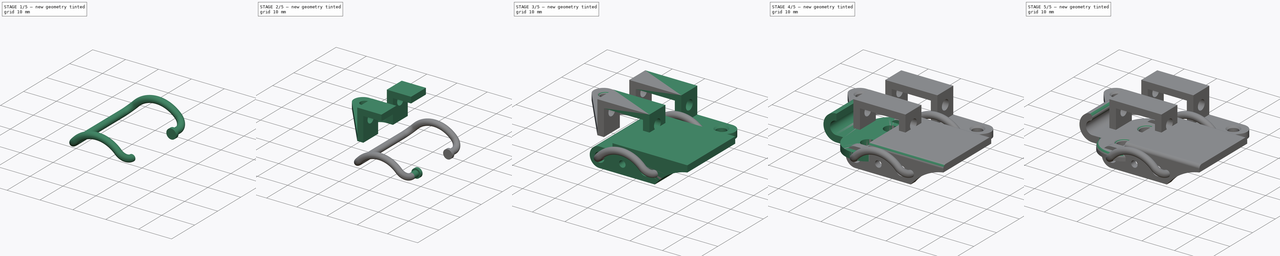
[diagram: build sequence overview — one tinted view per stage of 5, left to right]
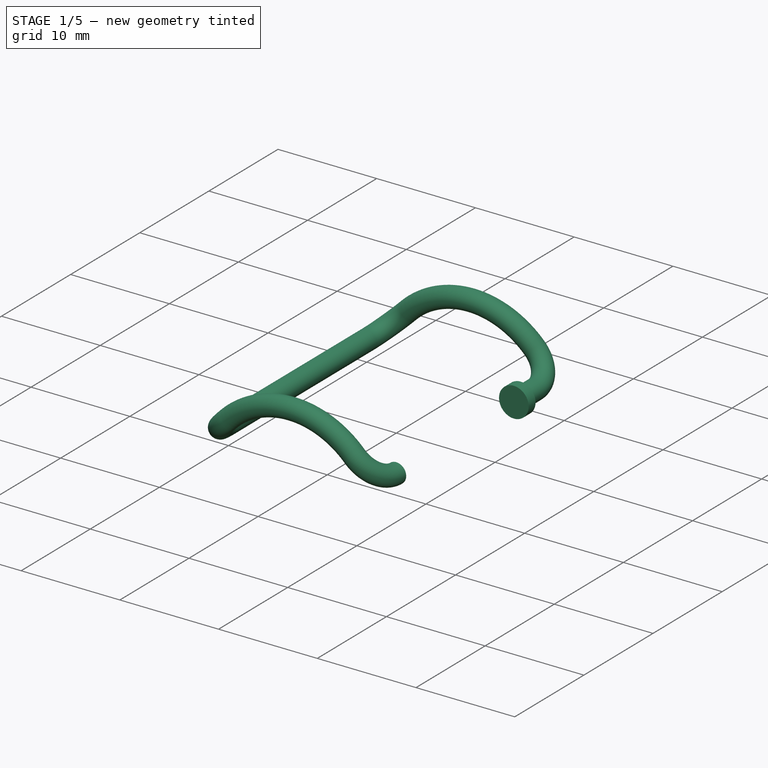
[diagram: stage 1 of 5 — iso view after this stage's code; geometry added in this stage tinted green]
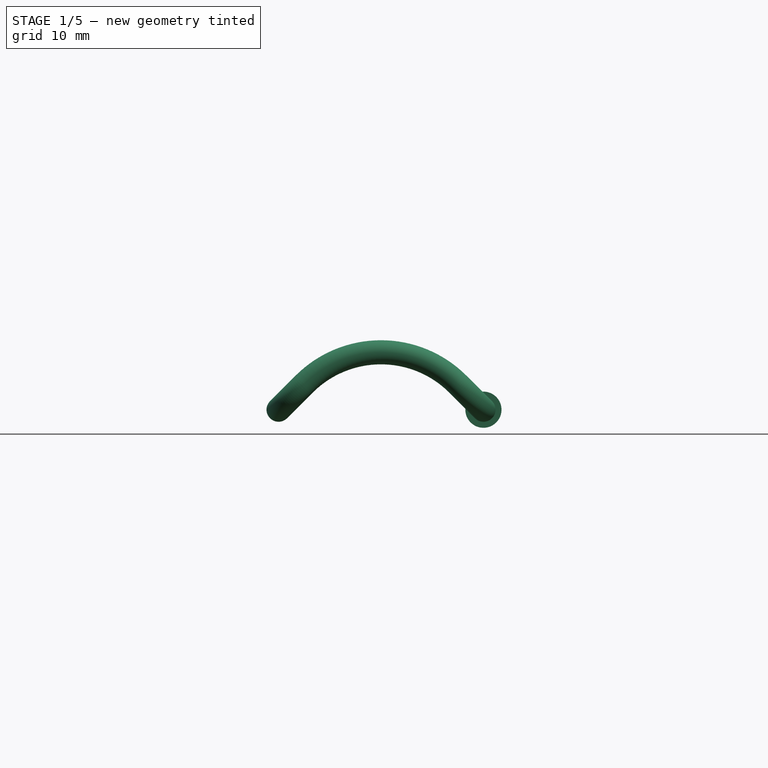
[diagram: stage 1 of 5 — front view after this stage's code; geometry added in this stage tinted green]
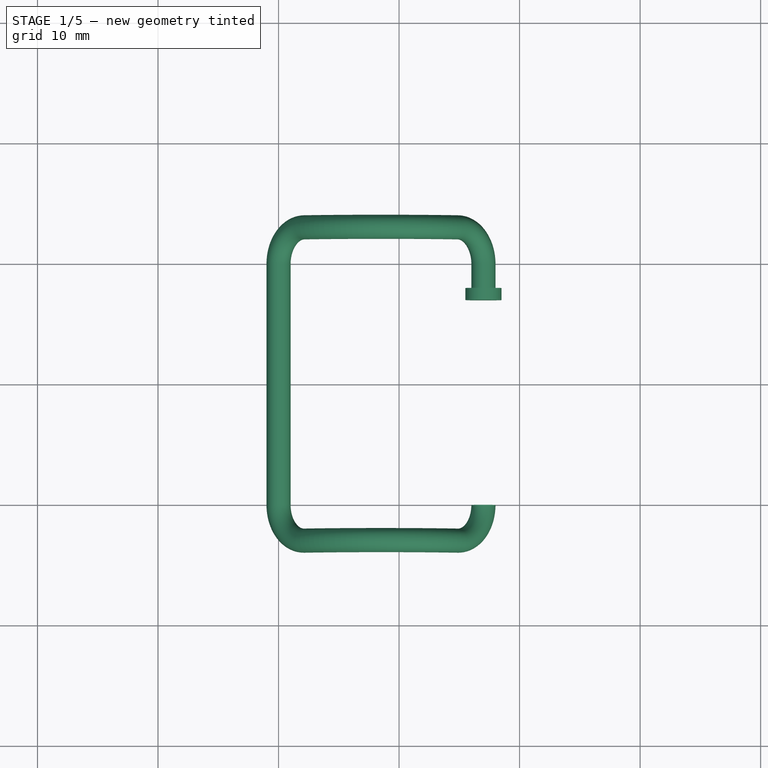
[diagram: stage 1 of 5 — top view after this stage's code; geometry added in this stage tinted green]
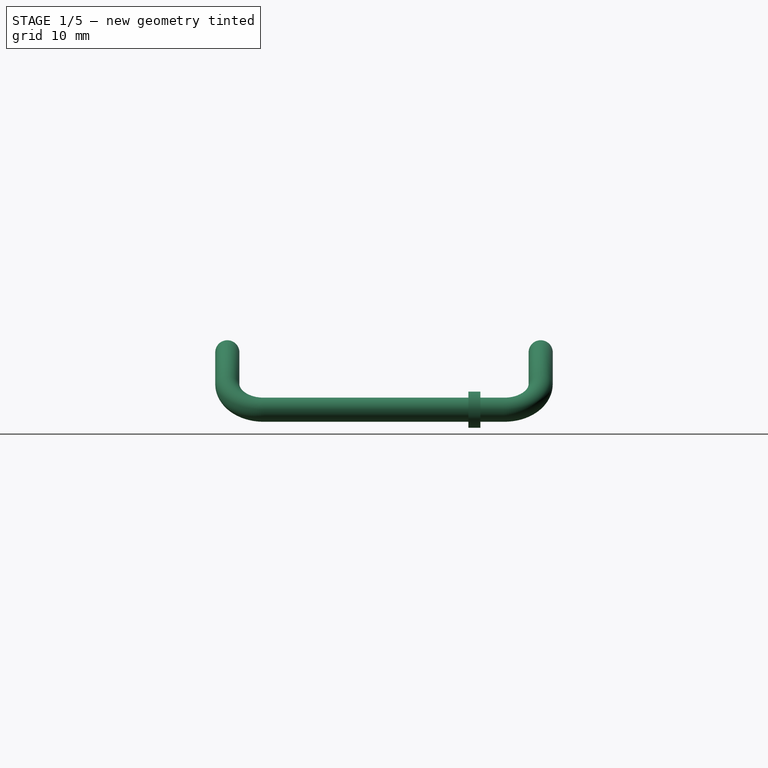
[diagram: stage 1 of 5 — right view after this stage's code; geometry added in this stage tinted green]
FCSTD DOCUMENT  (FreeCAD 0.21RUnknown)
Label: part35
License: All rights reserved
LicenseURL: http://en.wikipedia.org/wiki/All_rights_reserved
objects: Sketcher::SketchObject×13, PartDesign::Pad×6, PartDesign::Body×4, PartDesign::Fillet×3, PartDesign::Pocket×3, PartDesign::Chamfer×2, PartDesign::Mirrored×2, PartDesign::SubShapeBinder×1, PartDesign::AdditivePipe×1
note: 50 computed .brp shape members not serialized (recipe doc carries the construction recipe); baked Part::Feature solids carry a one-line shape summary decoded from their .brp

FEATURE [PartDesign::Body] Body002  label="Body Mount"
  Group = -> [Sketch004,Pad003,Sketch005,Pocket001,Sketch006,Pocket002,Chamfer001,Mirrored]
  Origin = -> Origin002
  Placement = pos=(83,-54,0) rot=(0,0,1;0rad)
  Tip = -> Mirrored
FEATURE [Sketcher::SketchObject] Sketch007  label="Path1"
  AttachmentOffset = pos=(0,0,0) rot=(0,1,0;-0.785398rad)
  FullyConstrained = true
  MapMode = 5
  Placement = pos=(0,0,0) rot=(0,1,0;5.49779rad)
  Support = -> [XY_Plane003]
  sketch-geometry (3):
    g0: ArcOfCircle CenterX=3 CenterY=10 CenterZ=0 NormalX=0 NormalY=0 NormalZ=1 AngleXU=0 Radius=3 StartAngle=1.5708 EndAngle=3.14159
    g1: LineSegment StartX=-4e-16 StartY=-10 StartZ=0 EndX=-4e-16 EndY=10 EndZ=0
    g2: ArcOfCircle CenterX=3 CenterY=-10 CenterZ=0 NormalX=0 NormalY=0 NormalZ=1 AngleXU=0 Radius=3 StartAngle=3.14159 EndAngle=4.71239
  constraints (9):
    c: Tangent(g1,g0) = 1.5708
    c: Radius(g0) = 3
    c: DistanceY(g1,g1) = 20
    c: Vertical(g0,g0)
    c: Vertical(g2,g2)
    c: Vertical(g2,g0)
    c: Tangent(g2,g1) = 1.5708
    c: Vertical(g1)
    c: Symmetric(g0,g1,g-1)
FEATURE [Sketcher::SketchObject] Sketch008  label="Path2"
  AttachmentOffset = pos=(17,0,0) rot=(0,1,0;0.785398rad)
  FullyConstrained = true
  MapMode = 5
  Placement = pos=(17,0,0) rot=(0,1,0;0.785398rad)
  Support = -> [XY_Plane003]
  sketch-geometry (2):
    g0: ArcOfCircle CenterX=-3 CenterY=-10 CenterZ=0 NormalX=0 NormalY=0 NormalZ=1 AngleXU=0 Radius=3 StartAngle=4.71239 EndAngle=6.28319
    g1: ArcOfCircle CenterX=-3 CenterY=10 CenterZ=0 NormalX=0 NormalY=0 NormalZ=1 AngleXU=0 Radius=3 StartAngle=0 EndAngle=1.5708
  constraints (9):
    c: Equal(g1,g0)
    c: Radius(g1) = 3
    c: Horizontal(g1,g1)
    c: Vertical(g1,g1)
    c: Horizontal(g0,g0)
    c: Vertical(g0,g0)
    c: Vertical(g1,g0)
    c: DistanceY(g0,g1) = 20
    c: Symmetric(g1,g0,g-1)
FEATURE [Sketcher::SketchObject] Sketch009  label="Path3"
  AttachmentOffset = pos=(0,0,13) rot=(0,0,1;0rad)
  ExternalGeometry = -> [Sketch007,Sketch008]
  FullyConstrained = true
  MapMode = 5
  Placement = pos=(0,-13,-2.9e-15) rot=(1,0,0;1.5708rad)
  Support = -> [XZ_Plane003]
  sketch-geometry (1):
    g0: ArcOfCircle CenterX=8.5 CenterY=-4.25736 CenterZ=0 NormalX=0 NormalY=0 NormalZ=1 AngleXU=0 Radius=9.02082 StartAngle=0.785398 EndAngle=2.35619
  constraints (2):
    c: Tangent(g0,g-3) = 1.5708
    c: Coincident(g0,g-4)
FEATURE [Sketcher::SketchObject] Sketch010  label="Path4"
  AttachmentOffset = pos=(0,0,-13) rot=(0,0,1;0rad)
  ExternalGeometry = -> [Sketch007,Sketch008]
  FullyConstrained = true
  MapMode = 5
  Placement = pos=(0,13,2.9e-15) rot=(1,0,0;1.5708rad)
  Support = -> [XZ_Plane003]
  sketch-geometry (1):
    g0: ArcOfCircle CenterX=8.5 CenterY=-4.25736 CenterZ=0 NormalX=0 NormalY=0 NormalZ=1 AngleXU=0 Radius=9.02082 StartAngle=0.785398 EndAngle=2.35619
  constraints (2):
    c: Tangent(g0,g-3) = 1.5708
    c: Coincident(g-4,g0)
FEATURE [Sketcher::SketchObject] Sketch011  label="Profile"
  FullyConstrained = true
  MapMode = 5
  Placement = pos=(0,0,0) rot=(1,0,0;1.5708rad)
  Support = -> [XZ_Plane003]
  sketch-geometry (1):
    g0: Circle CenterX=0 CenterY=0 CenterZ=0 NormalX=0 NormalY=0 NormalZ=1 AngleXU=0 Radius=1
  constraints (2):
    c: Coincident(g0,g-1)
    c: Diameter(g0) = 2
FEATURE [PartDesign::SubShapeBinder] Binder
  BindCopyOnChange = 0
  BindMode = 0
  ClaimChildren = false
  Context = -> Body003 [Binder.]
  Fuse = false
  MakeFace = true
  OffsetFill = false
  OffsetIntersection = false
  OffsetJoinType = 0
  OffsetOpenResult = false
  PartialLoad = false
  Relative = true
  Support = -> [Sketch007,Sketch009,Sketch008,Sketch010]
  _Version = 2
FEATURE [PartDesign::AdditivePipe] AdditivePipe
  AuxilleryCurvelinear = true
  AuxillerySpineTangent = false
  Binormal = (0,0,0)
  Mode = 0
  Placement = pos=(0,0,0) rot=(1,0,0;1.5708rad)
  Profile = -> Sketch011
  Spine = -> Binder
  SpineTangent = false
  Transformation = 0
  Transition = 0
FEATURE [PartDesign::Pad] Pad004
  BaseFeature = -> AdditivePipe
  Direction = (4.44e-14,-1,4.59e-14)
  Length = 2
  Length2 = 10
  Placement = pos=(0,0,0) rot=(1,0,0;1.5708rad)
  Profile = -> AdditivePipe [Face1]
  Type = 0
FEATURE [Sketcher::SketchObject] Sketch012
  ExternalGeometry = -> [Pad004]
  FullyConstrained = true
  MapMode = 5
  Placement = pos=(-3.553e-13,8,-3.71e-13) rot=(1,0,0;1.5708rad)
  Support = -> [Pad004]
  sketch-geometry (1):
    g0: Circle CenterX=17 CenterY=0 CenterZ=0 NormalX=0 NormalY=0 NormalZ=1 AngleXU=0 Radius=1.5
  constraints (2):
    c: Coincident(g0,g-3)
    c: Diameter(g0) = 3
FEATURE [PartDesign::Pad] Pad005
  BaseFeature = -> Pad004
  Direction = (4.44e-14,-1,4.6e-14)
  Length = 1
  Length2 = 10
  Placement = pos=(0,0,0) rot=(1,0,0;1.5708rad)
  Profile = -> Sketch012
  ReferenceAxis = -> Sketch012 [N_Axis]
  Type = 0
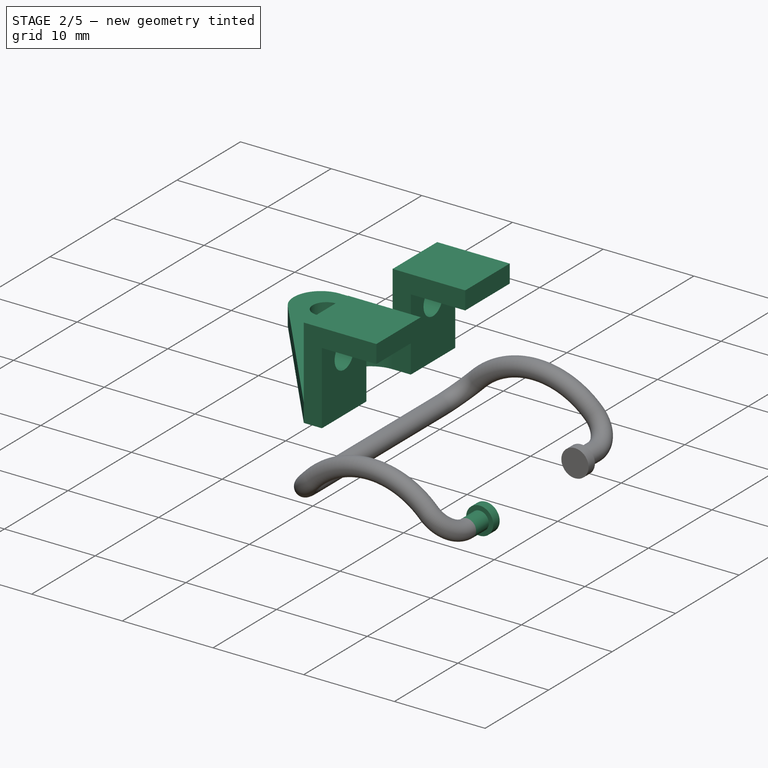
[diagram: stage 2 of 5 — iso view after this stage's code; geometry added in this stage tinted green]
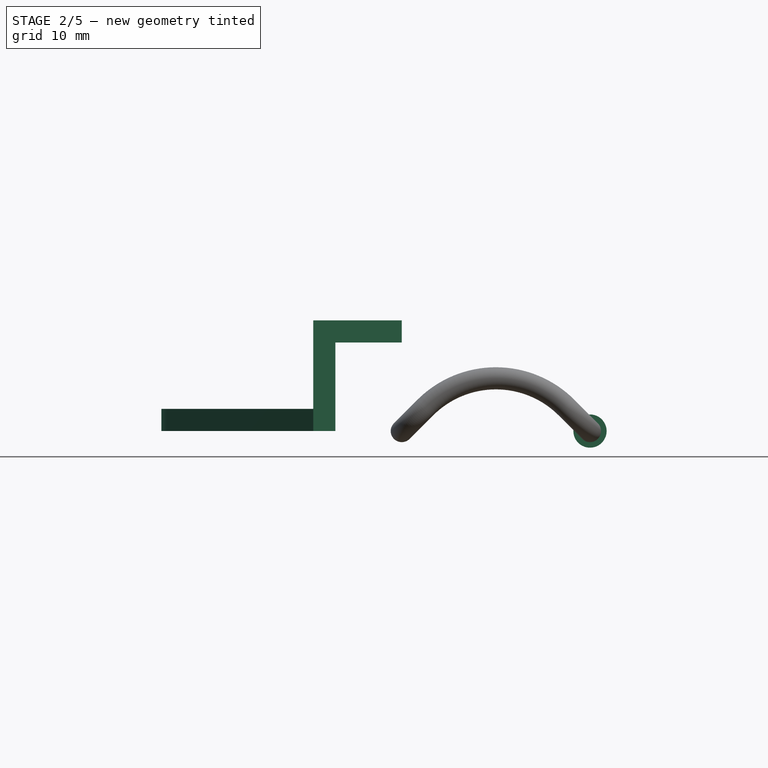
[diagram: stage 2 of 5 — front view after this stage's code; geometry added in this stage tinted green]
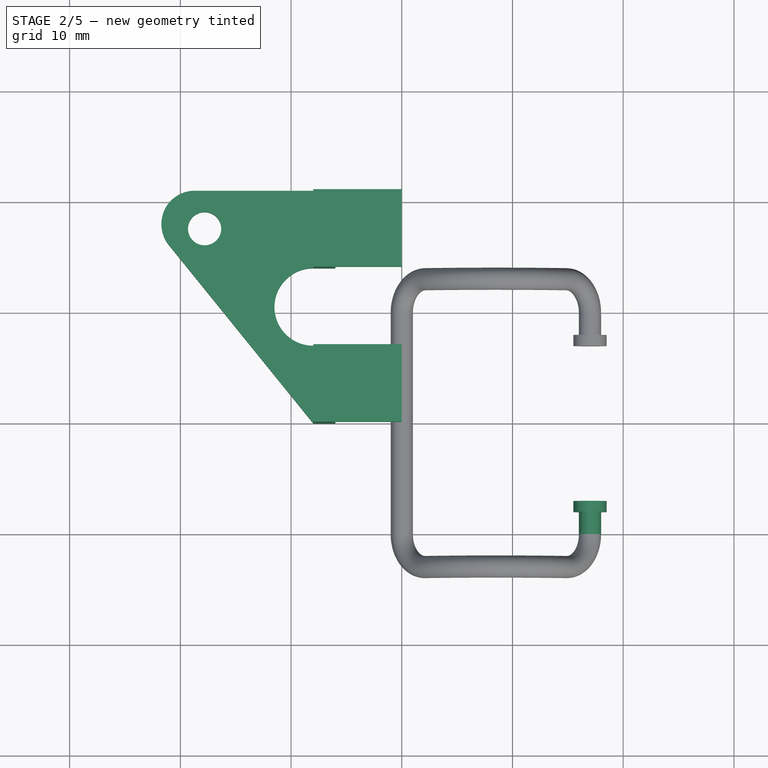
[diagram: stage 2 of 5 — top view after this stage's code; geometry added in this stage tinted green]
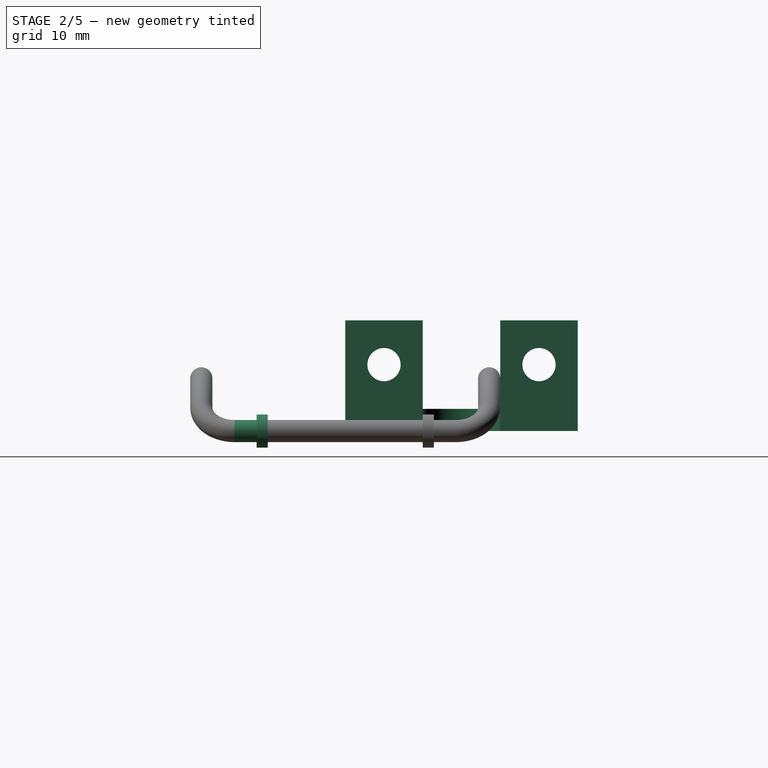
[diagram: stage 2 of 5 — right view after this stage's code; geometry added in this stage tinted green]
FEATURE [PartDesign::Body] Body001  label="Body Latch"
  Group = -> [Sketch002,Pad002,Sketch003,Pocket,Fillet002]
  Origin = -> Origin001
  Placement = pos=(28,-42,0) rot=(0,0,1;0rad)
  Tip = -> Fillet002
FEATURE [Sketcher::SketchObject] Sketch004
  FullyConstrained = true
  MapMode = 5
  Support = -> [XY_Plane002]
  sketch-geometry (17):
    g0: GeomPoint X=0 Y=21 Z=0
    g1: GeomPoint X=-8 Y=21 Z=0
    g2: GeomPoint X=-25 Y=21 Z=0
    g3: GeomPoint X=-8 Y=0 Z=0
    g4: LineSegment StartX=0 StartY=0 StartZ=0 EndX=-8 EndY=0 EndZ=0
    g5: LineSegment StartX=-8 StartY=0 StartZ=0 EndX=-21.0434 EndY=16.1124 EndZ=0
    g6: LineSegment StartX=-18.7116 StartY=21 StartZ=0 EndX=-8 EndY=21 EndZ=0
    g7: LineSegment StartX=-8 StartY=21 StartZ=0 EndX=0 EndY=21 EndZ=0
    g8: LineSegment StartX=0 StartY=21 StartZ=0 EndX=0 EndY=14 EndZ=0
    g9: ArcOfCircle CenterX=-18.7116 CenterY=18 CenterZ=0 NormalX=0 NormalY=0 NormalZ=1 AngleXU=0 Radius=3 StartAngle=1.5708 EndAngle=3.82211
    g10: GeomPoint X=-25 Y=21 Z=0
    g11: Circle CenterX=-17.8091 CenterY=17.5694 CenterZ=0 NormalX=0 NormalY=0 NormalZ=1 AngleXU=0 Radius=3.43058
    g12: Circle CenterX=-17.8091 CenterY=17.5694 CenterZ=0 NormalX=0 NormalY=0 NormalZ=1 AngleXU=0 Radius=1.5
    g13: ArcOfCircle CenterX=-8 CenterY=10.5 CenterZ=0 NormalX=0 NormalY=0 NormalZ=1 AngleXU=0 Radius=3.5 StartAngle=1.5708 EndAngle=4.71239
    g14: LineSegment StartX=-8 StartY=7 StartZ=0 EndX=0 EndY=7 EndZ=0
    g15: LineSegment StartX=0 StartY=14 StartZ=0 EndX=-8 EndY=14 EndZ=0
    g16: LineSegment StartX=0 StartY=7 StartZ=0 EndX=0 EndY=0 EndZ=0
  constraints (37):
    c: PointOnObject(g0,g-2)
    c: PointOnObject(g3,g-1)
    c: Vertical(g1,g3)
    c: Horizontal(g0,g1)
    c: Horizontal(g1,g2)
    c: DistanceX(g1,g0) = 8
    c: DistanceX(g2,g1) = 17
    c: DistanceY(g-1,g0) = 21
    c: Coincident(g-1,g4)
    c: Coincident(g4,g3)
    c: Coincident(g4,g5)
    c: Coincident(g10,g2)
    c: Coincident(g6,g1)
    c: Coincident(g6,g7)
    c: Coincident(g7,g0)
    c: Coincident(g7,g8)
    c: Coincident(g16,g4)
    c: PointOnObject(g10,g6)
    c: PointOnObject(g10,g5)
    c: Tangent(g6,g9) = 1.5708
    c: Tangent(g5,g9) = 1.5708
    c: Radius(g9) = 3
    c: Tangent(g11,g6)
    c: Tangent(g11,g5)
    c: Coincident(g12,g11)
    c: Diameter(g12) = 3
    c: Distance(g12,g9) = 1
    c: Tangent(g13,g14) = -1.5708
    c: Tangent(g15,g13) = -1.5708
    c: Horizontal(g14)
    c: Coincident(g8,g15)
    c: Coincident(g16,g14)
    c: PointOnObject(g8,g-2)
    c: PointOnObject(g14,g-2)
    c: Horizontal(g15)
    c: Symmetric(g6,g4,g13)
    c: Radius(g13) = 3.5
FEATURE [PartDesign::Pad] Pad003
  Direction = (0,0,1)
  Length = 10
  Length2 = 10
  Profile = -> Sketch004
  ReferenceAxis = -> Sketch004 [N_Axis]
  Type = 0
FEATURE [Sketcher::SketchObject] Sketch005
  ExternalGeometry = -> [Pad003]
  FullyConstrained = false
  MapMode = 5
  Placement = pos=(0,0,0) rot=(1,0,0;1.5708rad)
  Support = -> [XZ_Plane002]
  sketch-geometry (12):
    g0: LineSegment StartX=0 StartY=10 StartZ=0 EndX=-8 EndY=10 EndZ=0
    g1: LineSegment StartX=-8 StartY=10 StartZ=0 EndX=-8 EndY=2 EndZ=0
    g2: LineSegment StartX=-8 StartY=2 StartZ=0 EndX=-25 EndY=2 EndZ=0
    g3: LineSegment StartX=-25 StartY=2 StartZ=0 EndX=-25 EndY=0 EndZ=0
    g4: LineSegment StartX=-25 StartY=0 StartZ=0 EndX=-6 EndY=0 EndZ=0
    g5: LineSegment StartX=-6 StartY=0 StartZ=0 EndX=-6 EndY=8 EndZ=0
    g6: LineSegment StartX=-6 StartY=8 StartZ=0 EndX=0 EndY=8 EndZ=0
    g7: LineSegment StartX=-30.3925 StartY=16.6964 StartZ=0 EndX=0 EndY=16.6964 EndZ=0
    g8: LineSegment StartX=0 StartY=-11.3125 StartZ=0 EndX=-30.3925 EndY=-11.3125 EndZ=0
    g9: LineSegment StartX=-30.3925 StartY=-11.3125 StartZ=0 EndX=-30.3925 EndY=16.6964 EndZ=0
    g10: LineSegment StartX=0 StartY=10 StartZ=0 EndX=0 EndY=16.6964 EndZ=0
    g11: LineSegment StartX=0 StartY=8 StartZ=0 EndX=0 EndY=-11.3125 EndZ=0
  constraints (33):
    c: PointOnObject(g0,g-2)
    c: Horizontal(g0)
    c: Coincident(g0,g1)
    c: Vertical(g1)
    c: Coincident(g1,g2)
    c: Horizontal(g2)
    c: Coincident(g2,g3)
    c: Vertical(g3)
    c: Coincident(g3,g4)
    c: Horizontal(g4)
    c: Coincident(g4,g5)
    c: Vertical(g5)
    c: Coincident(g5,g6)
    c: PointOnObject(g6,g-2)
    c: Horizontal(g6)
    c: DistanceY(g3,g2) = 2
    c: PointOnObject(g3,g-1)
    c: DistanceX(g2,g1) = 17
    c: DistanceX(g0,g0) = 8
    c: PointOnObject(g0,g-3)
    c: DistanceX(g1,g4) = 2
    c: Coincident(g8,g9)
    c: Coincident(g9,g7)
    c: Horizontal(g7)
    c: Horizontal(g8)
    c: Vertical(g9)
    c: PointOnObject(g7,g-2)
    c: Coincident(g10,g0)
    c: Coincident(g10,g7)
    c: DistanceY(g6,g0) = 2
    c: Coincident(g11,g6)
    c: Coincident(g11,g8)
    c: Vertical(g11)
FEATURE [PartDesign::Pocket] Pocket001  label="Pocket001 - Sketch is like a cookie cutter"
  BaseFeature = -> Pad003
  Direction = (0,1,-2e-16)
  Length = 5
  Length2 = 5
  Profile = -> Sketch005
  ReferenceAxis = -> Sketch005 [N_Axis]
  Type = 1
FEATURE [Sketcher::SketchObject] Sketch006
  ExternalGeometry = -> [Pocket001]
  FullyConstrained = true
  MapMode = 5
  Placement = pos=(-8,0,0) rot=(0.57735,-0.57735,-0.57735;2.0944rad)
  Support = -> [Pocket001]
  sketch-geometry (2):
    g0: Circle CenterX=-17.5 CenterY=6 CenterZ=0 NormalX=0 NormalY=0 NormalZ=1 AngleXU=0 Radius=1.5
    g1: Circle CenterX=-3.5 CenterY=6 CenterZ=0 NormalX=0 NormalY=0 NormalZ=1 AngleXU=0 Radius=1.5
  constraints (4):
    c: Equal(g1,g0)
    c: Diameter(g1) = 3
    c: Symmetric(g-3,g-5,g0)
    c: Symmetric(g-6,g-7,g1)
FEATURE [PartDesign::Pocket] Pocket002
  BaseFeature = -> Pocket001
  Direction = (1,0,0)
  Length = 5
  Length2 = 5
  Profile = -> Sketch006
  ReferenceAxis = -> Sketch006 [N_Axis]
  Type = 1
FEATURE [PartDesign::Mirrored] Mirrored001
  BaseFeature = -> Pad005
  MirrorPlane = -> XZ_Plane003
  Originals = -> [Pad004,Pad005]
  Placement = pos=(0,0,0) rot=(1,0,0;1.5708rad)
FEATURE [PartDesign::Body] Body003  label="Body Clip"
  Group = -> [Sketch007,Sketch008,Sketch009,Sketch010,Sketch011,Binder,AdditivePipe,Pad004,Sketch012,Pad005,Mirrored001]
  Origin = -> Origin003
  Placement = pos=(0,-43,0) rot=(0,0,1;0rad)
  Tip = -> Mirrored001
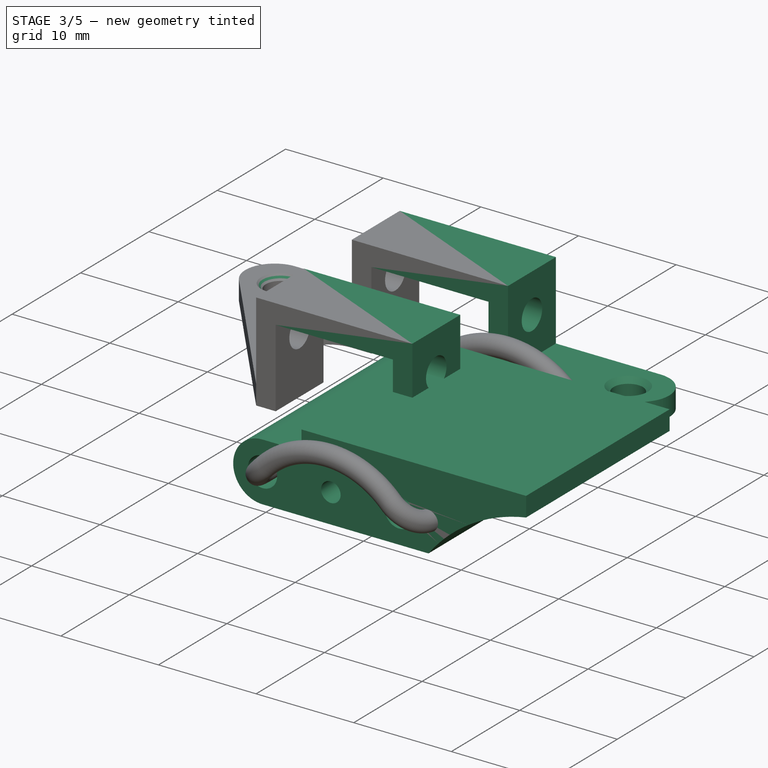
[diagram: stage 3 of 5 — iso view after this stage's code; geometry added in this stage tinted green]
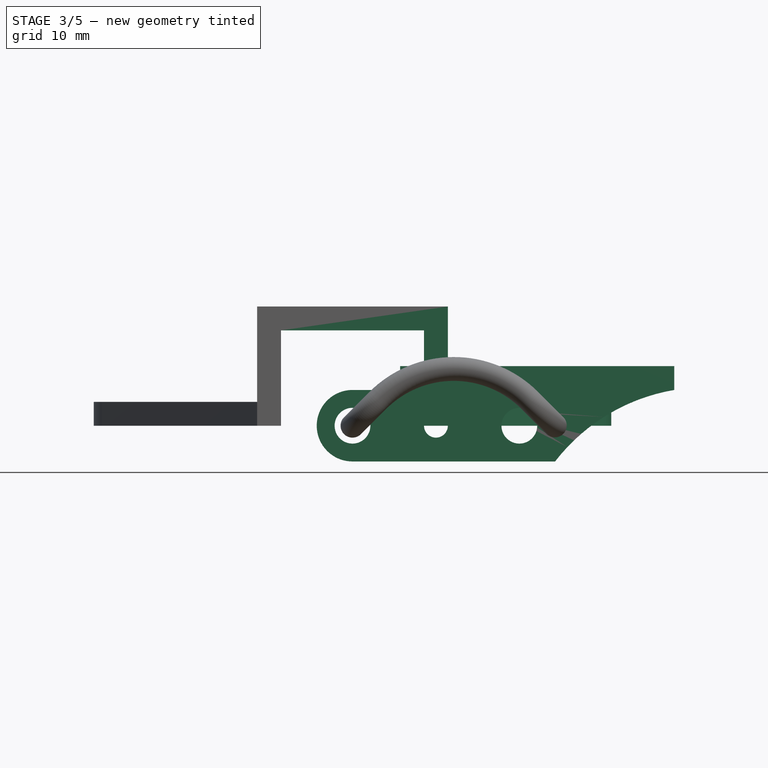
[diagram: stage 3 of 5 — front view after this stage's code; geometry added in this stage tinted green]
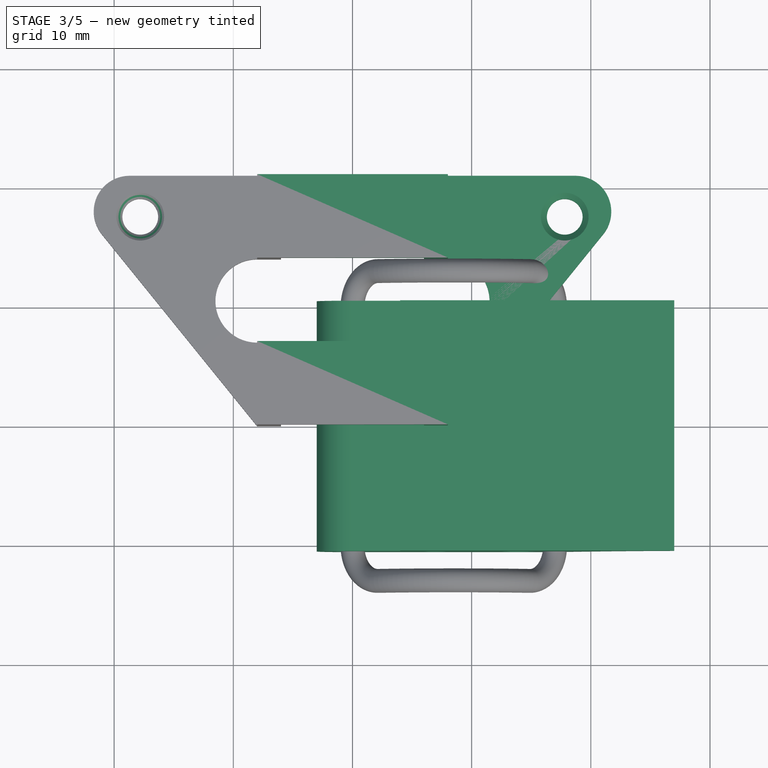
[diagram: stage 3 of 5 — top view after this stage's code; geometry added in this stage tinted green]
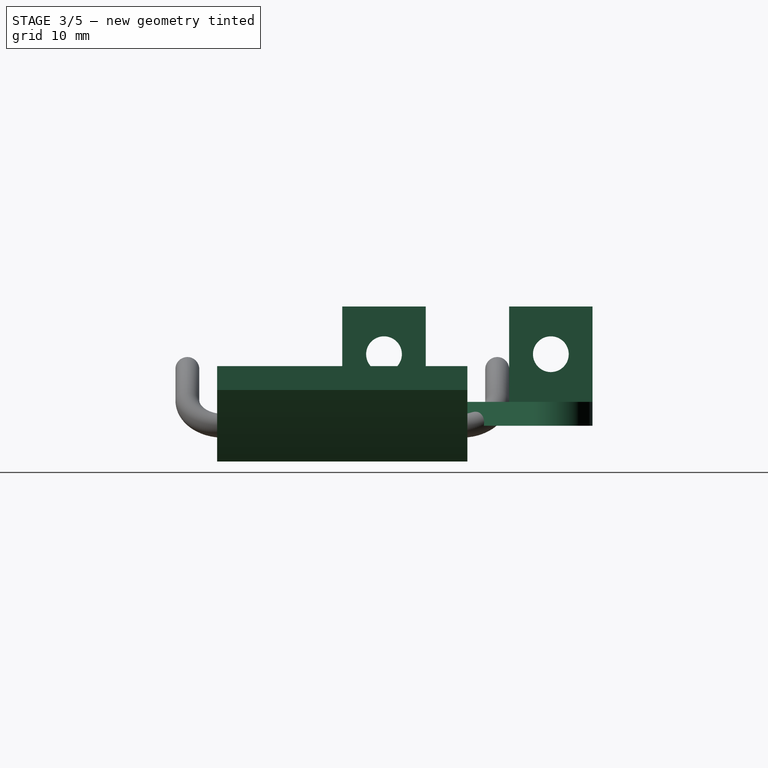
[diagram: stage 3 of 5 — right view after this stage's code; geometry added in this stage tinted green]
FEATURE [PartDesign::Body] Body  label="Body Hinge"
  Group = -> [Sketch,Pad,Sketch001,Pad001,Chamfer,Fillet,Fillet001]
  Origin = -> Origin
  Placement = pos=(-26,-38,0) rot=(0,0,1;3.14159rad)
  Tip = -> Fillet001
FEATURE [Sketcher::SketchObject] Sketch002
  FullyConstrained = true
  MapMode = 5
  Placement = pos=(0,0,0) rot=(1,0,0;1.5708rad)
  Support = -> [XZ_Plane001]
  sketch-geometry (11):
    g0: ArcOfCircle CenterX=0 CenterY=0 CenterZ=0 NormalX=0 NormalY=0 NormalZ=1 AngleXU=0 Radius=3 StartAngle=1.5708 EndAngle=4.71239
    g1: LineSegment StartX=-6e-16 StartY=-3 StartZ=0 EndX=17 EndY=-3 EndZ=0
    g2: ArcOfCircle CenterX=29.6658 CenterY=-12.7764 CenterZ=0 NormalX=0 NormalY=0 NormalZ=1 AngleXU=0 Radius=16 StartAngle=1.73819 EndAngle=2.48424
    g3: LineSegment StartX=27 StartY=3 StartZ=0 EndX=27 EndY=5 EndZ=0
    g4: LineSegment StartX=27 StartY=5 StartZ=0 EndX=4 EndY=5 EndZ=0
    g5: LineSegment StartX=4 StartY=5 StartZ=0 EndX=4 EndY=3 EndZ=0
    g6: LineSegment StartX=2e-16 StartY=3 StartZ=0 EndX=4 EndY=3 EndZ=0
    g7: GeomPoint X=-3 Y=0 Z=0
    g8: Circle CenterX=0 CenterY=0 CenterZ=0 NormalX=0 NormalY=0 NormalZ=1 AngleXU=0 Radius=1.5
    g9: Circle CenterX=7 CenterY=0 CenterZ=0 NormalX=0 NormalY=0 NormalZ=1 AngleXU=0 Radius=1
    g10: Circle CenterX=14 CenterY=0 CenterZ=0 NormalX=0 NormalY=0 NormalZ=1 AngleXU=0 Radius=1.5
  constraints (32):
    c: PointOnObject(g0,g-2)
    c: PointOnObject(g0,g-2)
    c: Radius(g0) = 3
    c: Coincident(g1,g0)
    c: Horizontal(g1)
    c: Coincident(g2,g1)
    c: Coincident(g0,g-1)
    c: DistanceX(g0,g1) = 17
    c: Radius(g2) = 16
    c: Coincident(g3,g2)
    c: Vertical(g3)
    c: Coincident(g4,g3)
    c: Horizontal(g4)
    c: Coincident(g5,g4)
    c: Vertical(g5)
    c: Coincident(g6,g0)
    c: Horizontal(g6)
    c: Coincident(g5,g6)
    c: DistanceY(g3,g3) = 2
    c: Equal(g5,g3)
    c: DistanceX(g4,g4) = 23
    c: PointOnObject(g7,g0)
    c: PointOnObject(g7,g-1)
    c: DistanceX(g7,g2) = 30
    c: Coincident(g8,g0)
    c: PointOnObject(g9,g-1)
    c: PointOnObject(g10,g-1)
    c: Equal(g8,g10)
    c: Diameter(g8) = 3
    c: Diameter(g9) = 2
    c: DistanceX(g0,g9) = 7
    c: DistanceX(g9,g10) = 7
FEATURE [PartDesign::Pad] Pad002
  Direction = (0,-1,2e-16)
  Length = 21
  Length2 = 10
  Midplane = true
  Placement = pos=(0,0,0) rot=(1,0,0;1.5708rad)
  Profile = -> Sketch002
  ReferenceAxis = -> Sketch002 [N_Axis]
  Type = 0
FEATURE [PartDesign::Chamfer] Chamfer001
  Angle = 45
  Base = -> Pocket002 [Edge53]
  BaseFeature = -> Pocket002
  ChamferType = 0
  FlipDirection = false
  Size = 0.5
  Size2 = 1
  SupportTransform = false
  UseAllEdges = false
FEATURE [PartDesign::Mirrored] Mirrored
  BaseFeature = -> Chamfer001
  MirrorPlane = -> Sketch004 [V_Axis]
  Originals = -> [Pad003,Pocket001,Pocket002,Chamfer001]
  Refine = true
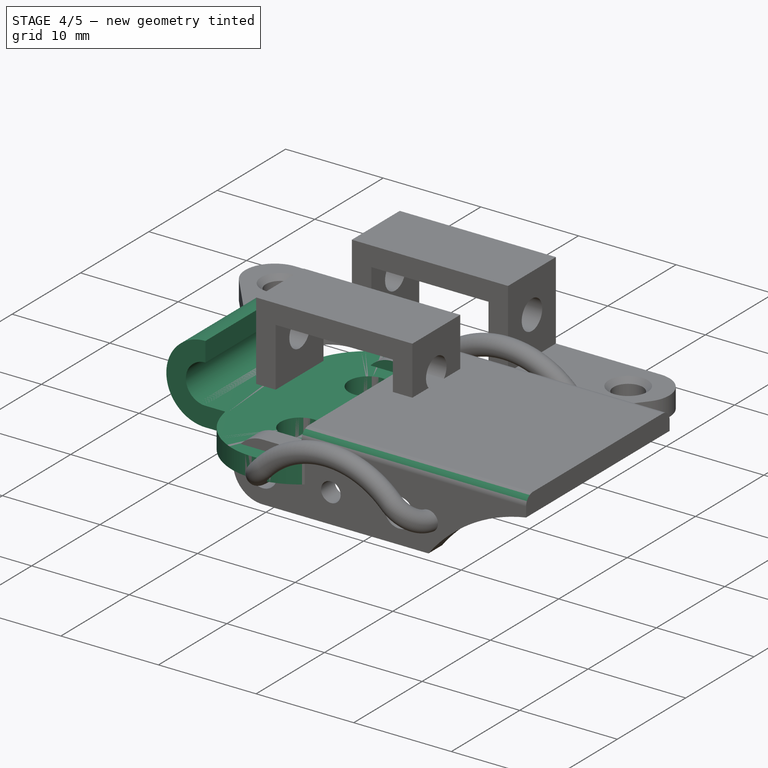
[diagram: stage 4 of 5 — iso view after this stage's code; geometry added in this stage tinted green]
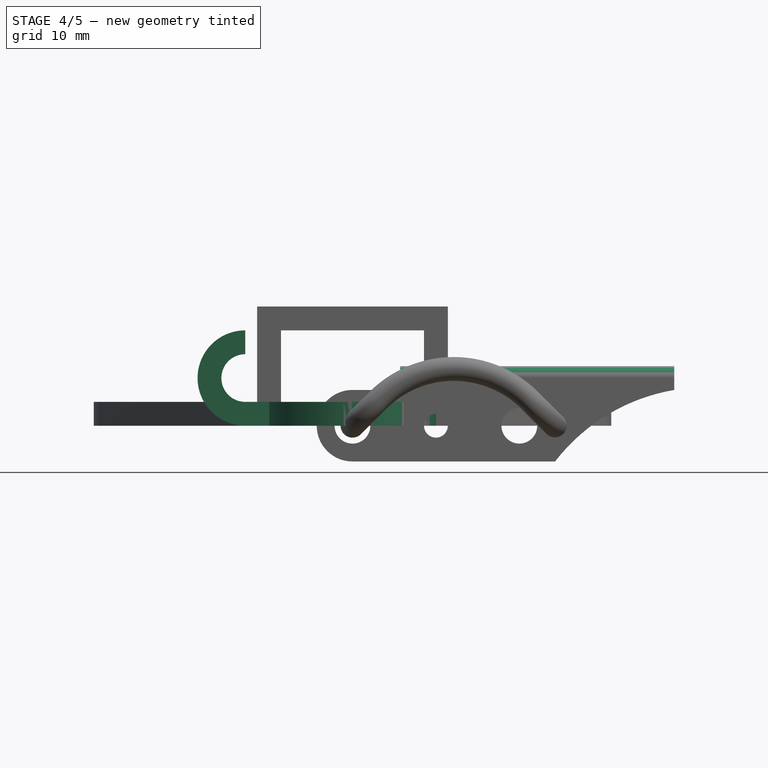
[diagram: stage 4 of 5 — front view after this stage's code; geometry added in this stage tinted green]
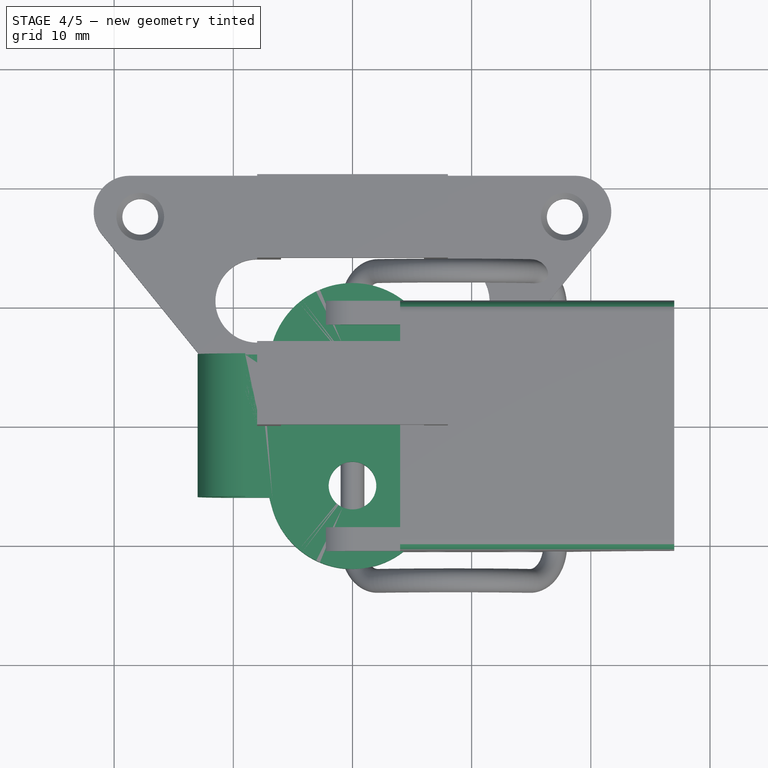
[diagram: stage 4 of 5 — top view after this stage's code; geometry added in this stage tinted green]
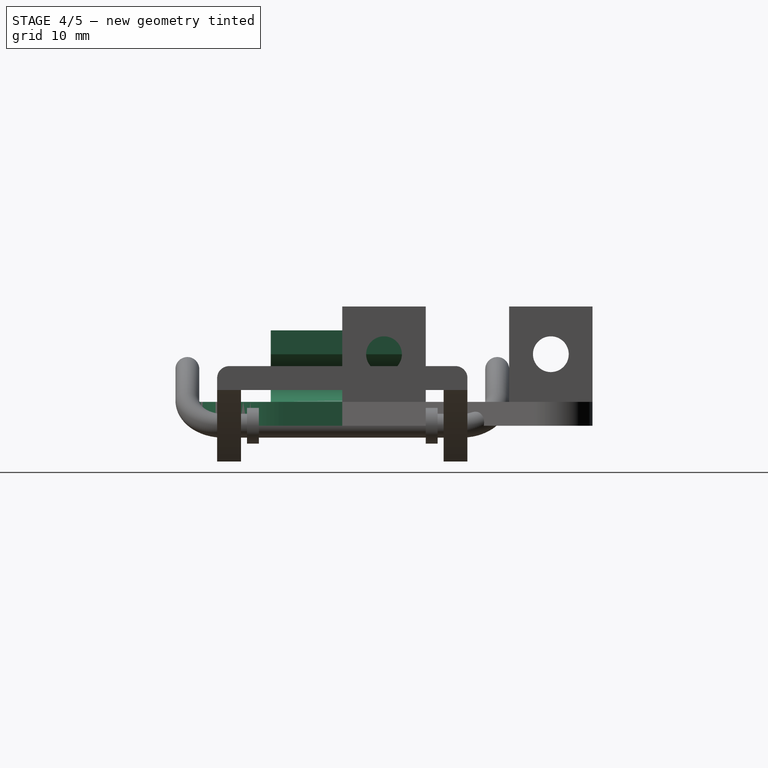
[diagram: stage 4 of 5 — right view after this stage's code; geometry added in this stage tinted green]
FEATURE [Sketcher::SketchObject] Sketch
  FullyConstrained = true
  MapMode = 5
  Support = -> [XY_Plane]
  sketch-geometry (6):
    g0: ArcOfCircle CenterX=0 CenterY=5 CenterZ=0 NormalX=0 NormalY=0 NormalZ=1 AngleXU=0 Radius=7 StartAngle=0 EndAngle=2.86011
    g1: ArcOfCircle CenterX=0 CenterY=-5 CenterZ=0 NormalX=0 NormalY=0 NormalZ=1 AngleXU=0 Radius=7 StartAngle=3.42307 EndAngle=6.28319
    g2: LineSegment StartX=7 StartY=-5 StartZ=0 EndX=7 EndY=5 EndZ=0
    g3: ArcOfCircle CenterX=17.2916 CenterY=-4.9e-15 CenterZ=0 NormalX=0 NormalY=0 NormalZ=1 AngleXU=0 Radius=25 StartAngle=2.86011 EndAngle=3.42307
    g4: Circle CenterX=0 CenterY=5 CenterZ=0 NormalX=0 NormalY=0 NormalZ=1 AngleXU=0 Radius=2
    g5: Circle CenterX=0 CenterY=-5 CenterZ=0 NormalX=0 NormalY=0 NormalZ=1 AngleXU=0 Radius=2
  constraints (14):
    c: Tangent(g1,g2) = -1.5708
    c: Tangent(g2,g0) = -1.5708
    c: Equal(g0,g1)
    c: PointOnObject(g0,g-2)
    c: Symmetric(g1,g0,g-1)
    c: DistanceY(g1,g0) = 10
    c: Diameter(g0) = 14
    c: Tangent(g3,g0) = -1.5708
    c: Tangent(g3,g1) = -1.5708
    c: Coincident(g4,g0)
    c: Coincident(g5,g1)
    c: Equal(g5,g4)
    c: Radius(g5) = 2
    c: Radius(g3) = 25
FEATURE [PartDesign::Pad] Pad
  Direction = (0,0,1)
  Length = 2
  Length2 = 10
  Profile = -> Sketch
  ReferenceAxis = -> Sketch [N_Axis]
  Type = 0
FEATURE [Sketcher::SketchObject] Sketch001
  ExternalGeometry = -> [Pad]
  FullyConstrained = true
  MapMode = 5
  Placement = pos=(0,0,0) rot=(1,0,0;1.5708rad)
  Support = -> [XZ_Plane]
  sketch-geometry (7):
    g0: LineSegment StartX=-6.72452 StartY=2 StartZ=0 EndX=-9 EndY=2 EndZ=0
    g1: LineSegment StartX=-6.72452 StartY=0 StartZ=0 EndX=-9 EndY=0 EndZ=0
    g2: ArcOfCircle CenterX=-9 CenterY=4 CenterZ=0 NormalX=0 NormalY=0 NormalZ=1 AngleXU=0 Radius=4 StartAngle=1.5708 EndAngle=4.71239
    g3: ArcOfCircle CenterX=-9 CenterY=4 CenterZ=0 NormalX=0 NormalY=0 NormalZ=1 AngleXU=0 Radius=2 StartAngle=1.5708 EndAngle=4.71239
    g4: LineSegment StartX=-9 StartY=8 StartZ=0 EndX=-9 EndY=6 EndZ=0
    g5: GeomPoint X=-13 Y=4 Z=0
    g6: LineSegment StartX=-6.72452 StartY=2 StartZ=0 EndX=-6.72452 EndY=0 EndZ=0
  constraints (20):
    c: Horizontal(g0)
    c: PointOnObject(g1,g-1)
    c: PointOnObject(g1,g-1)
    c: Vertical(g0,g1)
    c: Coincident(g2,g1)
    c: Coincident(g3,g0)
    c: Radius(g2) = 4
    c: Coincident(g2,g3)
    c: Coincident(g4,g2)
    c: Coincident(g4,g3)
    c: Vertical(g4)
    c: Vertical(g2,g0)
    c: PointOnObject(g5,g2)
    c: Horizontal(g2,g5)
    c: DistanceX(g5,g-4) = 20
    c: Coincident(g6,g0)
    c: Coincident(g6,g1)
    c: Vertical(g6)
    c: Coincident(g0,g-3)
    c: Vertical(g0,g2)
FEATURE [PartDesign::Pad] Pad001
  BaseFeature = -> Pad
  Direction = (0,-1,2e-16)
  Length = 12
  Length2 = 10
  Midplane = true
  Profile = -> Sketch001
  ReferenceAxis = -> Sketch001 [N_Axis]
  Type = 0
FEATURE [Sketcher::SketchObject] Sketch003
  ExternalGeometry = -> [Pad002]
  FullyConstrained = false
  MapMode = 5
  Placement = pos=(0,0,0) rot=(-0.57735,0.57735,0.57735;4.18879rad)
  Support = -> [YZ_Plane001]
  sketch-geometry (4):
    g0: LineSegment StartX=-8.5 StartY=3 StartZ=0 EndX=8.5 EndY=3 EndZ=0
    g1: LineSegment StartX=8.5 StartY=3 StartZ=0 EndX=8.5 EndY=-6.67315 EndZ=0
    g2: LineSegment StartX=8.5 StartY=-6.67315 StartZ=0 EndX=-8.5 EndY=-6.67315 EndZ=0
    g3: LineSegment StartX=-8.5 StartY=-6.67315 StartZ=0 EndX=-8.5 EndY=3 EndZ=0
  constraints (10):
    c: Coincident(g0,g1)
    c: Coincident(g1,g2)
    c: Coincident(g2,g3)
    c: Coincident(g3,g0)
    c: Horizontal(g2)
    c: Vertical(g1)
    c: Vertical(g3)
    c: PointOnObject(g0,g-4)
    c: Symmetric(g0,g0,g-2)
    c: DistanceX(g0,g-4) = 2
FEATURE [PartDesign::Pocket] Pocket
  BaseFeature = -> Pad002
  Direction = (1,-2e-16,3e-16)
  Length = 5
  Length2 = 5
  Midplane = true
  Placement = pos=(0,0,0) rot=(1,0,0;1.5708rad)
  Profile = -> Sketch003
  ReferenceAxis = -> Sketch003 [N_Axis]
  Type = 1
FEATURE [PartDesign::Fillet] Fillet002  label="Fillet003"
  Base = -> Pocket [Edge8,Edge29]
  BaseFeature = -> Pocket
  Placement = pos=(0,0,0) rot=(1,0,0;1.5708rad)
  Radius = 1
  SupportTransform = false
  UseAllEdges = false
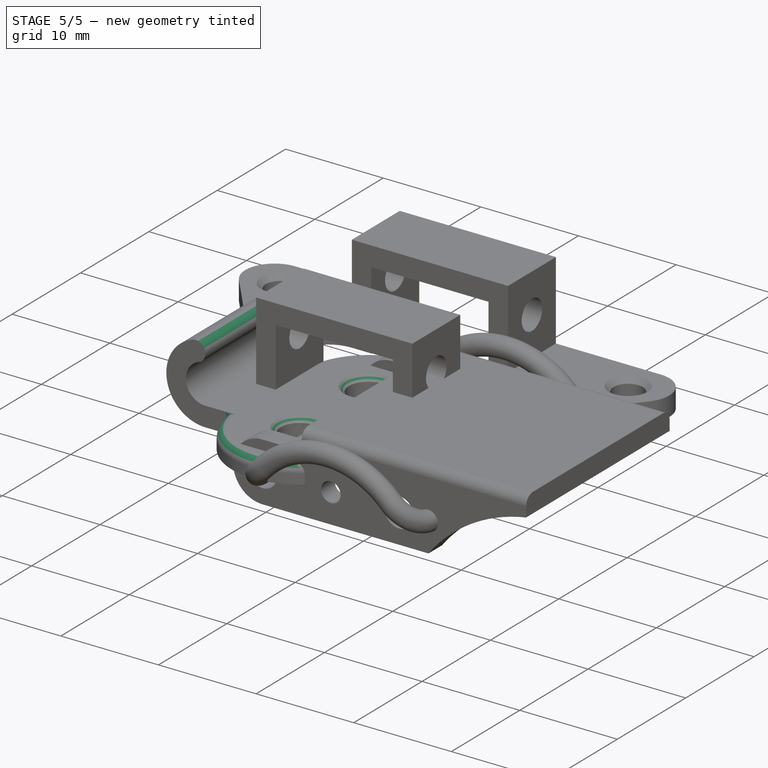
[diagram: stage 5 of 5 — iso view after this stage's code; geometry added in this stage tinted green]
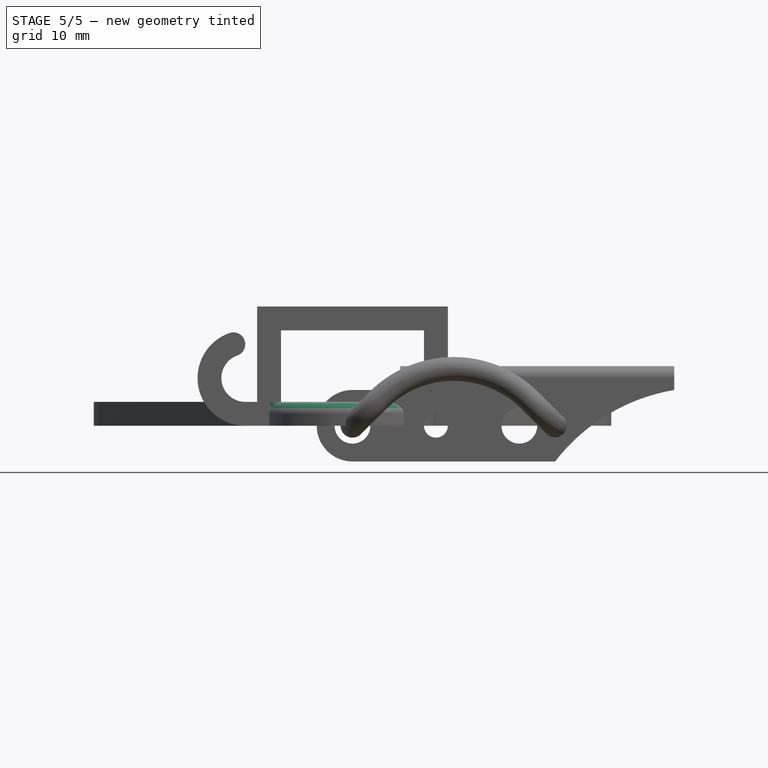
[diagram: stage 5 of 5 — front view after this stage's code; geometry added in this stage tinted green]
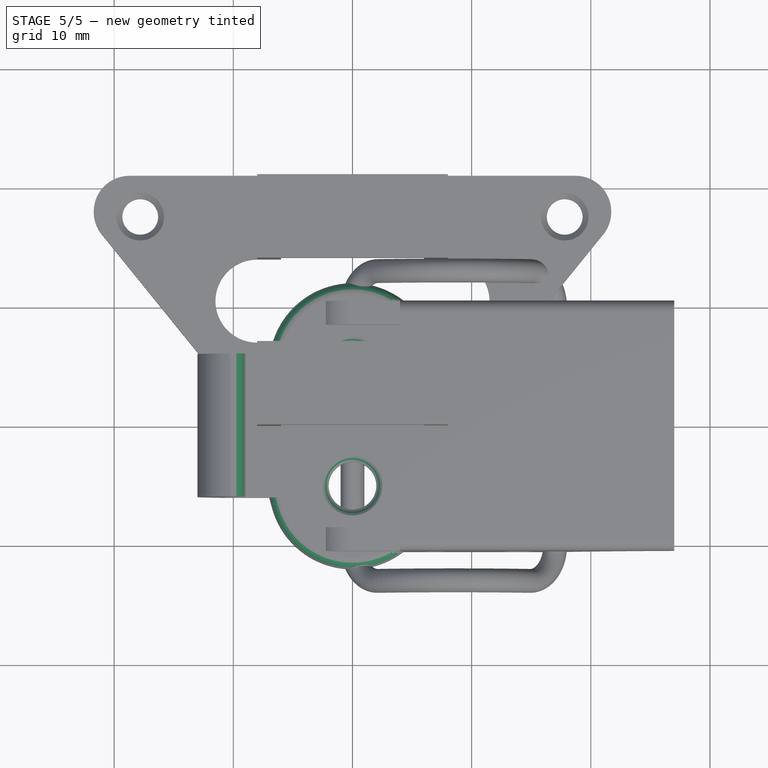
[diagram: stage 5 of 5 — top view after this stage's code; geometry added in this stage tinted green]
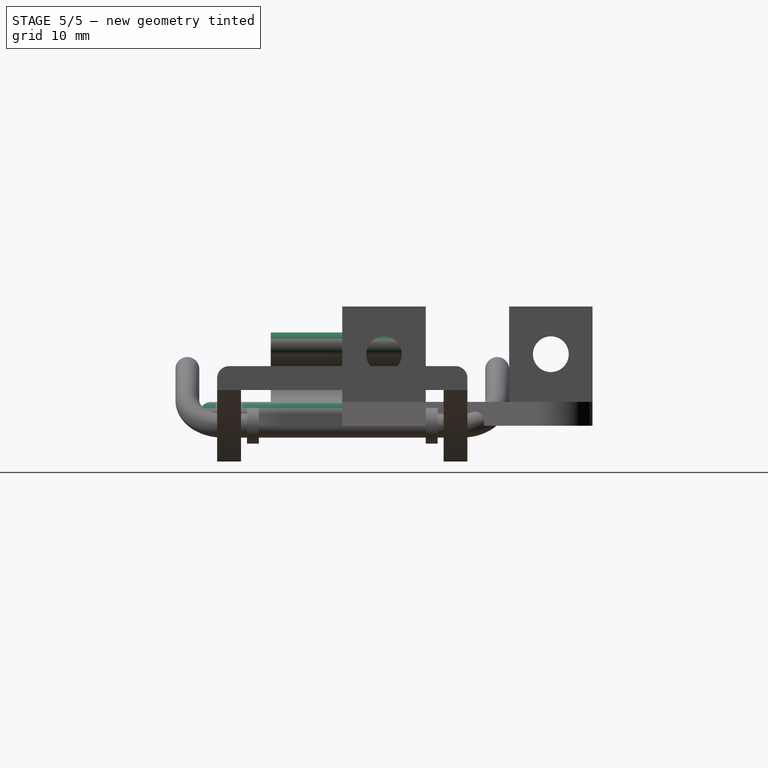
[diagram: stage 5 of 5 — right view after this stage's code; geometry added in this stage tinted green]
FEATURE [PartDesign::Chamfer] Chamfer
  Angle = 45
  Base = -> Pad001 [Edge23,Edge24]
  BaseFeature = -> Pad001
  ChamferType = 0
  FlipDirection = false
  Size = 0.5
  Size2 = 1
  SupportTransform = false
  UseAllEdges = false
FEATURE [PartDesign::Fillet] Fillet  label="Fillet - refined to cleanup faces"
  Base = -> Chamfer [Edge47,Edge46]
  BaseFeature = -> Chamfer
  Radius = 0.99
  Refine = true
  SupportTransform = false
  UseAllEdges = false
FEATURE [PartDesign::Fillet] Fillet001
  Base = -> Fillet [Edge30,Edge36,Edge34,Edge28,Edge18]
  BaseFeature = -> Fillet
  Radius = 1
  SupportTransform = false
  UseAllEdges = false
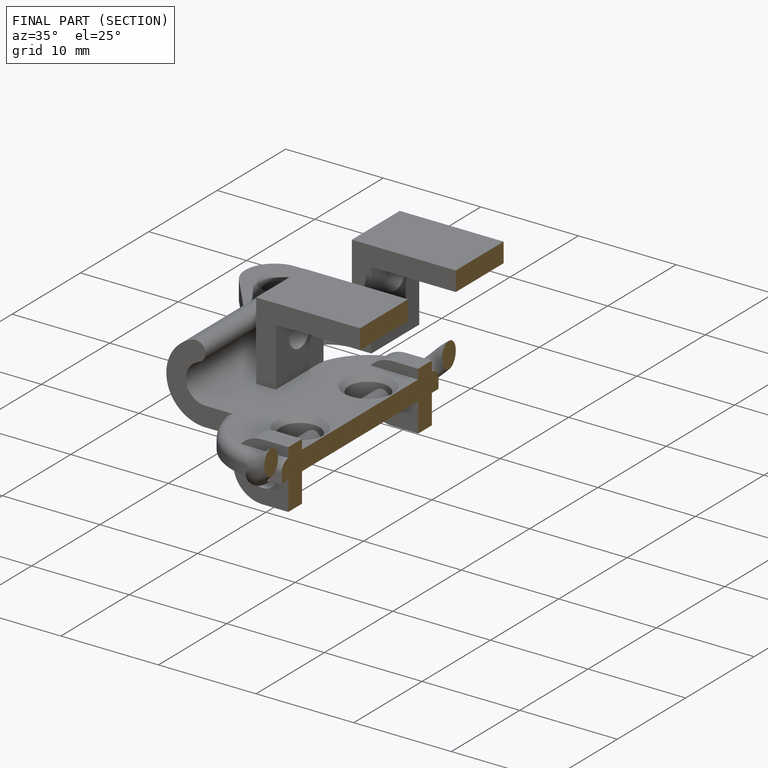
[diagram: finished part — half-section view (interior)]
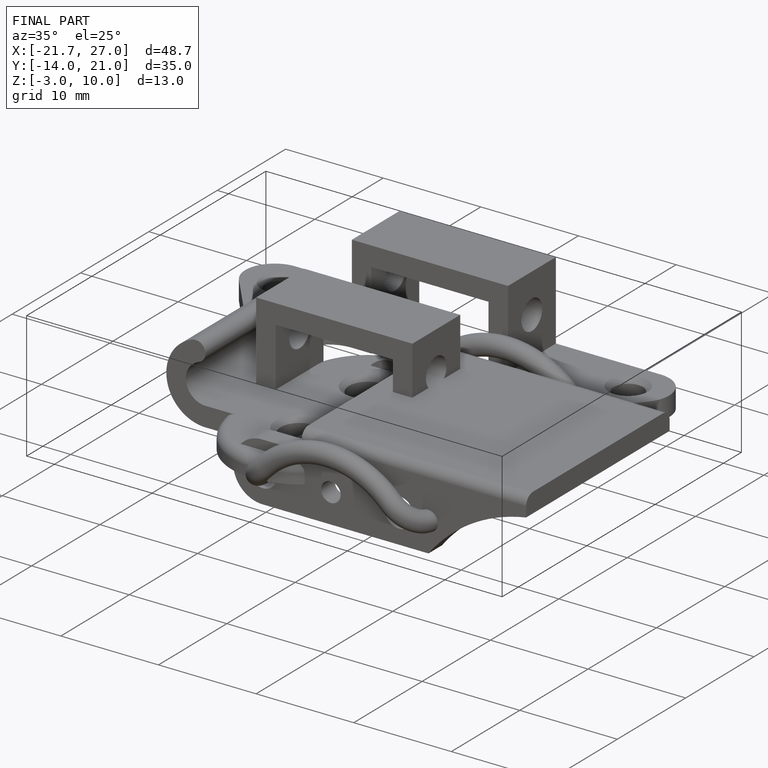
[diagram: finished part — iso view with bounding-box wireframe]
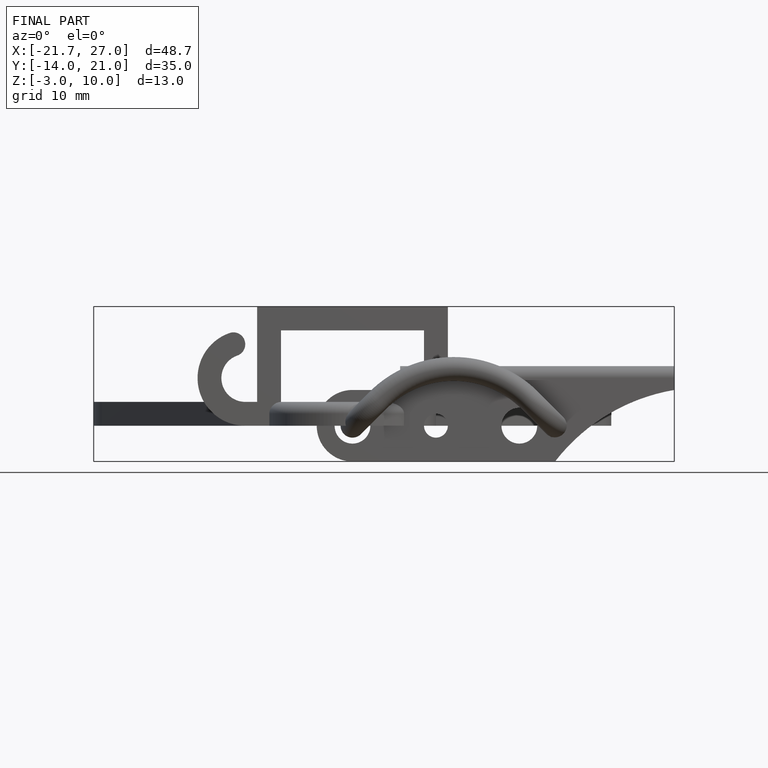
[diagram: finished part — front view with bounding-box wireframe]
